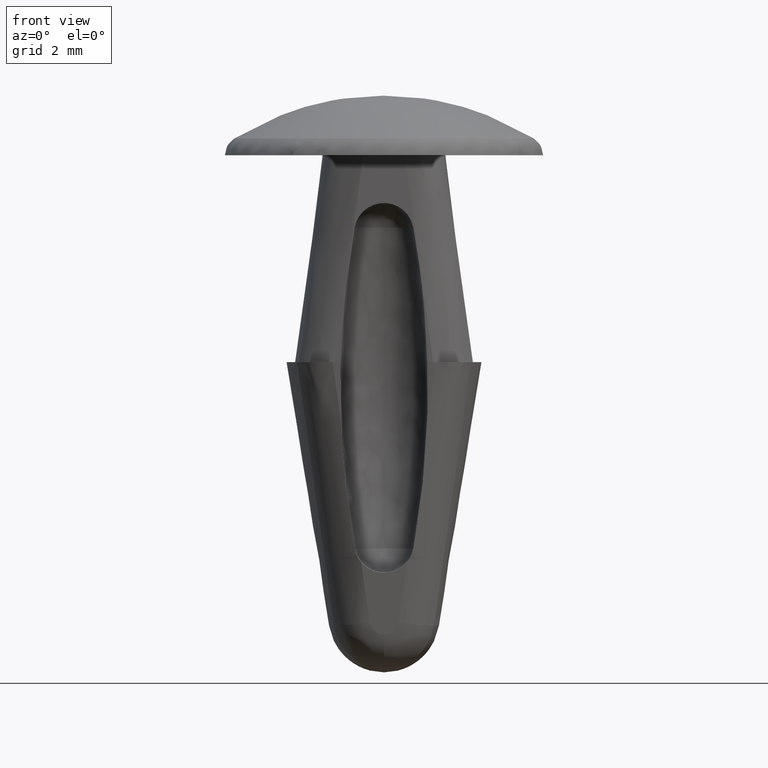
[diagram: clean part render]
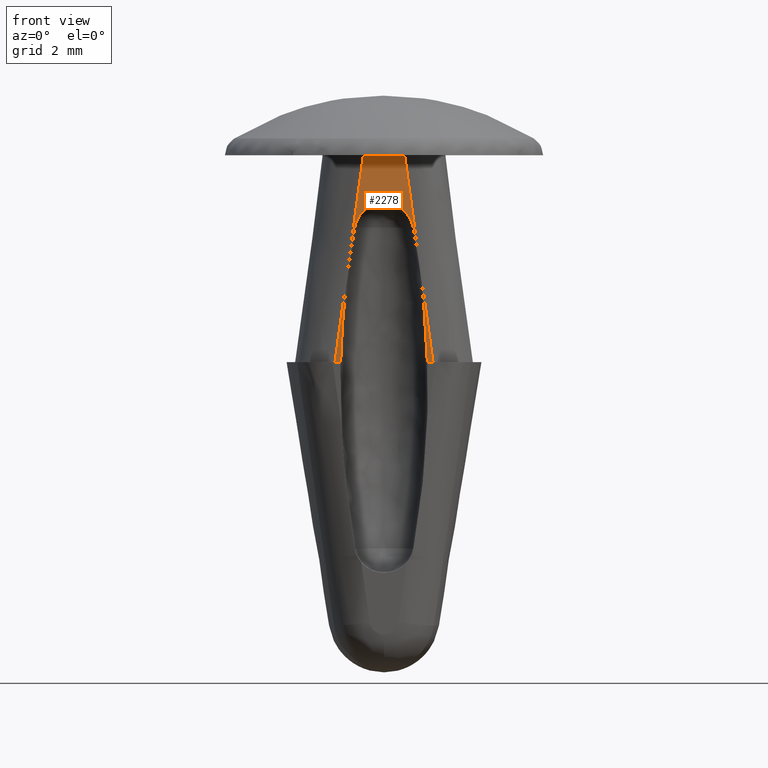
[diagram: same view with one face highlighted and labeled with its STEP entity id]
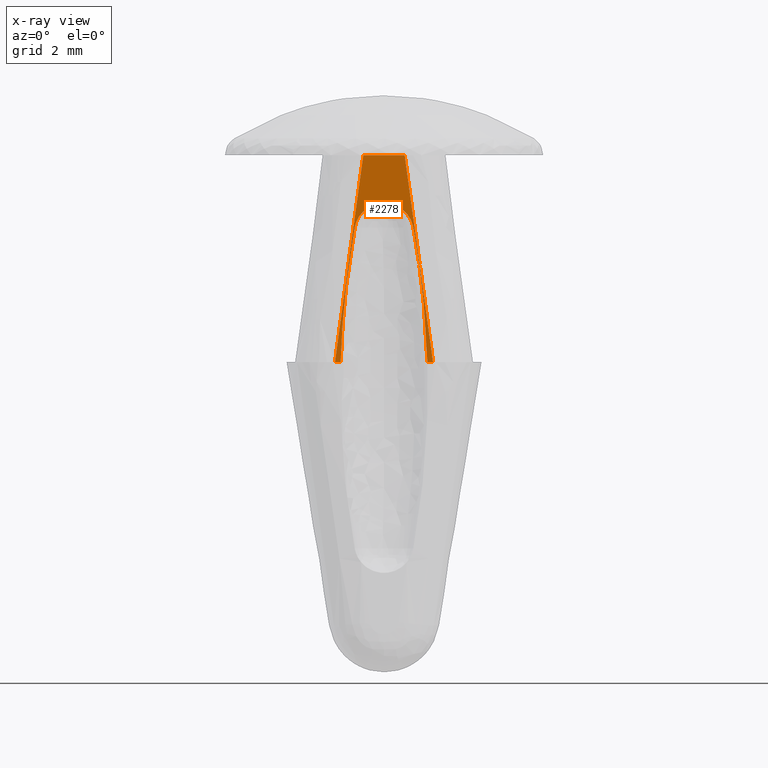
[diagram: x-ray of the same camera — body ghosted, the highlighted face saturated]
A machine part, front view. The second image highlights one B-rep face of the part: STEP entity #2278.
The next image is the same camera in x-ray: the body ghosted, the highlighted face saturated — about 0% of this face is hidden behind the body in this view.
In plain terms, the highlighted face is a freeform B-spline surface patch.
Its self-contained STEP definition (entity closure, byte-faithful):
#691=CARTESIAN_POINT('',(1.090672782265968,-1.149993999998600,-5.199997000000000));
#692=VERTEX_POINT('',#691);
#693=CARTESIAN_POINT('',(0.738015649786433,-1.149993999998600,-1.816459064524815));
#694=VERTEX_POINT('',#693);
#695=CARTESIAN_POINT('',(1.090672782265968,-1.149993999998600,-5.199997000000000));
#696=CARTESIAN_POINT('',(1.041729515698930,-1.149993999998600,-3.494951002313491));
#697=CARTESIAN_POINT('',(0.738015649786433,-1.149993999998600,-1.816459064524815));
#705=(BOUNDED_CURVE()B_SPLINE_CURVE(2,(#695,#696,#697),.UNSPECIFIED.,.F.,.U.)CURVE()GEOMETRIC_REPRESENTATION_ITEM()QUASI_UNIFORM_CURVE()RATIONAL_B_SPLINE_CURVE((1.0,0.997177170944844,1.0))REPRESENTATION_ITEM(''));
#706=EDGE_CURVE('',#692,#694,#705,.T.);
#767=CARTESIAN_POINT('',(-0.738017438590745,-1.149993999998600,-1.816457897339955));
#768=VERTEX_POINT('',#767);
#769=CARTESIAN_POINT('',(-1.090674782265978,-1.149993999998600,-5.199997000000000));
#770=VERTEX_POINT('',#769);
#771=CARTESIAN_POINT('',(-0.738017438590745,-1.149993999998600,-1.816457897339955));
#772=CARTESIAN_POINT('',(-1.041731498585435,-1.149993999998600,-3.494950406127401));
#773=CARTESIAN_POINT('',(-1.090674782265981,-1.149993999998600,-5.199997000000011));
#781=(BOUNDED_CURVE()B_SPLINE_CURVE(2,(#771,#772,#773),.UNSPECIFIED.,.F.,.U.)CURVE()GEOMETRIC_REPRESENTATION_ITEM()QUASI_UNIFORM_CURVE()RATIONAL_B_SPLINE_CURVE((1.0,0.997177168979135,1.0))REPRESENTATION_ITEM(''));
#782=EDGE_CURVE('',#768,#770,#781,.T.);
#846=CARTESIAN_POINT('',(0.738015649786433,-1.149993999998600,-1.816459064524815));
#847=CARTESIAN_POINT('',(0.626471827104252,-1.149993999998600,-1.199997381960766));
#848=CARTESIAN_POINT('',(-0.000000553278940,-1.149993999998600,-1.199996886572767));
#849=CARTESIAN_POINT('',(-0.626472933662133,-1.149993999998600,-1.199996391184769));
#850=CARTESIAN_POINT('',(-0.738017438590745,-1.149993999998600,-1.816457897339955));
#858=(BOUNDED_CURVE()B_SPLINE_CURVE(2,(#846,#847,#848,#849,#850),.UNSPECIFIED.,.F.,.U.)B_SPLINE_CURVE_WITH_KNOTS((3,2,3),(0.0,0.500000000000000,1.0),.UNSPECIFIED.)CURVE()GEOMETRIC_REPRESENTATION_ITEM()RATIONAL_B_SPLINE_CURVE((1.0,0.767480034763245,1.0,0.767480034763245,1.0))REPRESENTATION_ITEM(''));
#859=EDGE_CURVE('',#694,#768,#858,.T.);
#917=CARTESIAN_POINT('',(1.231881951760050,-1.149994000000000,-5.199997000000000));
#918=VERTEX_POINT('',#917);
#959=CARTESIAN_POINT('',(0.519769247711910,-1.149994000000000,-7.041450E-017));
#960=VERTEX_POINT('',#959);
#984=CARTESIAN_POINT('',(1.231881951760050,-1.149994000000000,-5.199997000000000));
#985=CARTESIAN_POINT('',(1.114332399781864,-1.149994000000000,-4.333175402784315));
#986=CARTESIAN_POINT('',(0.996580711712192,-1.149994000000007,-3.466381244405774));
#987=CARTESIAN_POINT('',(0.759856037158307,-1.149994000000007,-1.732959211771465));
#988=CARTESIAN_POINT('',(0.641144736710053,-1.149994000000000,-0.866294595204499));
#989=CARTESIAN_POINT('',(0.519769247711910,-1.149994000000000,-7.041450E-017));
#990=B_SPLINE_CURVE_WITH_KNOTS('',3,(#984,#985,#986,#987,#988,#989),.UNSPECIFIED.,.F.,.U.,(4,2,4),(0.0,0.500000000000000,1.0),.UNSPECIFIED.);
#991=EDGE_CURVE('',#918,#960,#990,.T.);
#1046=CARTESIAN_POINT('',(-0.519769247711910,-1.149994000000000,-7.041450E-017));
#1047=VERTEX_POINT('',#1046);
#1086=CARTESIAN_POINT('',(-1.231881951760050,-1.149994000000000,-5.199997000000000));
#1087=VERTEX_POINT('',#1086);
#1115=CARTESIAN_POINT('',(-0.519769247711910,-1.149994000000000,-7.041450E-017));
#1116=CARTESIAN_POINT('',(-0.641144736714252,-1.149994000000000,-0.866294595234464));
#1117=CARTESIAN_POINT('',(-0.759856037157414,-1.149994000000007,-1.732959211765060));
#1118=CARTESIAN_POINT('',(-0.996580711703448,-1.149994000000007,-3.466381244341612));
#1119=CARTESIAN_POINT('',(-1.114332399780963,-1.149994000000000,-4.333175402777676));
#1120=CARTESIAN_POINT('',(-1.231881951760050,-1.149994000000000,-5.199997000000000));
#1121=B_SPLINE_CURVE_WITH_KNOTS('',3,(#1115,#1116,#1117,#1118,#1119,#1120),.UNSPECIFIED.,.F.,.U.,(4,2,4),(0.0,0.500000000000000,1.0),.UNSPECIFIED.);
#1122=EDGE_CURVE('',#1047,#1087,#1121,.T.);
#1725=CARTESIAN_POINT('',(0.519769247711910,-1.149994000000000,-7.041450E-017));
#1726=CARTESIAN_POINT('',(-0.519769247711910,-1.149994000000000,-7.041450E-017));
#1727=QUASI_UNIFORM_CURVE('',1,(#1725,#1726),.UNSPECIFIED.,.F.,.U.);
#1728=EDGE_CURVE('',#960,#1047,#1727,.T.);
#2255=CARTESIAN_POINT('',(-1.354946977093680,-1.149994000000000,-5.459736791257545));
#2256=CARTESIAN_POINT('',(-1.354946977093680,-1.149994000000000,0.259739977223930));
#2257=CARTESIAN_POINT('',(1.354947021149211,-1.149994000000000,-5.459736791257545));
#2258=CARTESIAN_POINT('',(1.354947021149211,-1.149994000000000,0.259739977223930));
#2259=B_SPLINE_SURFACE_WITH_KNOTS('',1,1,((#2255,#2257),(#2256,#2258)),.UNSPECIFIED.,.F.,.F.,.U.,(2,2),(2,2),(0.0,5.719476768481475),(0.0,2.709893998242891),.UNSPECIFIED.);
#2260=ORIENTED_EDGE('',*,*,#782,.F.);
#2261=ORIENTED_EDGE('',*,*,#859,.F.);
#2262=ORIENTED_EDGE('',*,*,#706,.F.);
#2263=CARTESIAN_POINT('',(1.231881951760050,-1.149994000000000,-5.199997000000000));
#2264=CARTESIAN_POINT('',(1.090672782265968,-1.149993999998600,-5.199997000000000));
#2265=QUASI_UNIFORM_CURVE('',1,(#2263,#2264),.UNSPECIFIED.,.F.,.U.);
#2266=EDGE_CURVE('',#918,#692,#2265,.T.);
#2267=ORIENTED_EDGE('',*,*,#2266,.F.);
#2268=ORIENTED_EDGE('',*,*,#991,.T.);
#2269=ORIENTED_EDGE('',*,*,#1728,.T.);
#2270=ORIENTED_EDGE('',*,*,#1122,.T.);
#2271=CARTESIAN_POINT('',(-1.090674782265978,-1.149993999998600,-5.199997000000000));
#2272=CARTESIAN_POINT('',(-1.231881951760050,-1.149994000000000,-5.199997000000000));
#2273=QUASI_UNIFORM_CURVE('',1,(#2271,#2272),.UNSPECIFIED.,.F.,.U.);
#2274=EDGE_CURVE('',#770,#1087,#2273,.T.);
#2275=ORIENTED_EDGE('',*,*,#2274,.F.);
#2276=EDGE_LOOP('',(#2260,#2261,#2262,#2267,#2268,#2269,#2270,#2275));
#2277=FACE_OUTER_BOUND('',#2276,.T.);
#2278=ADVANCED_FACE('',(#2277),#2259,.F.);